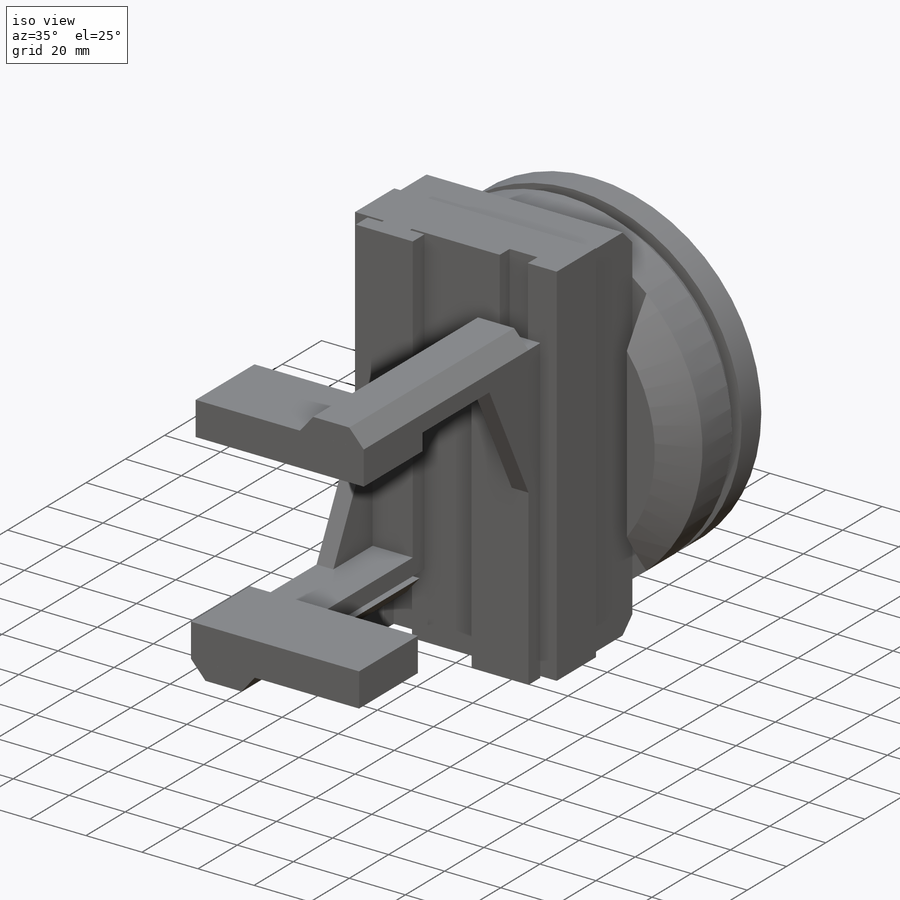
[diagram: iso view]
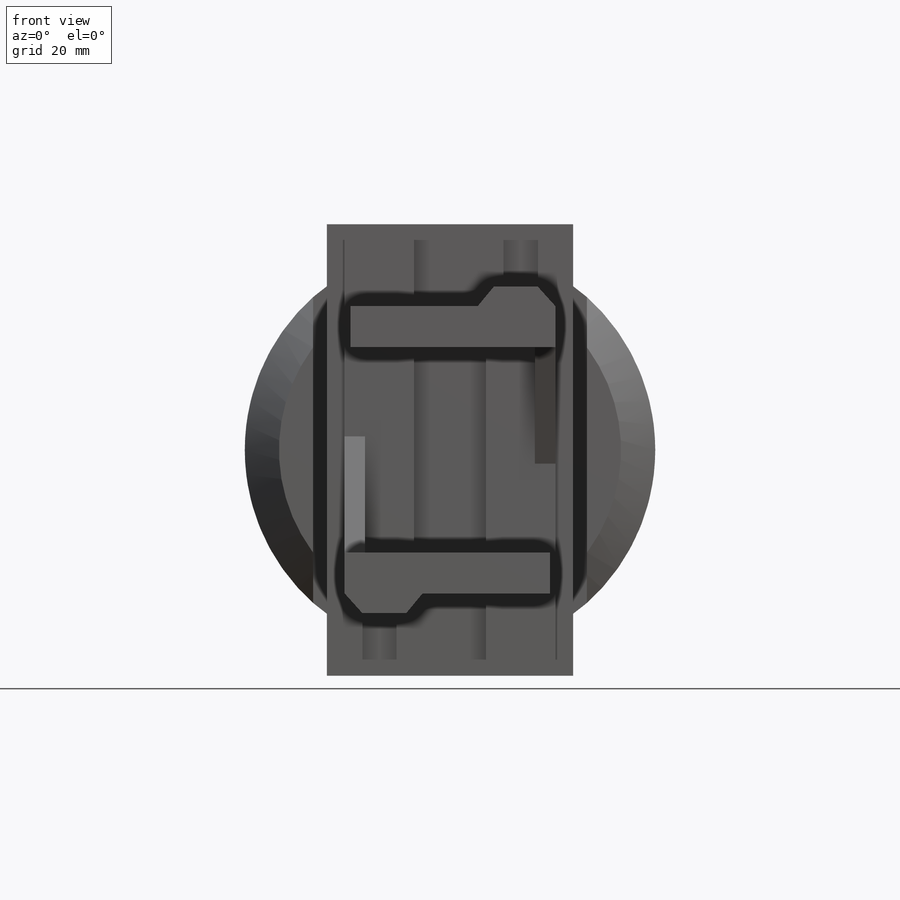
[diagram: front view]
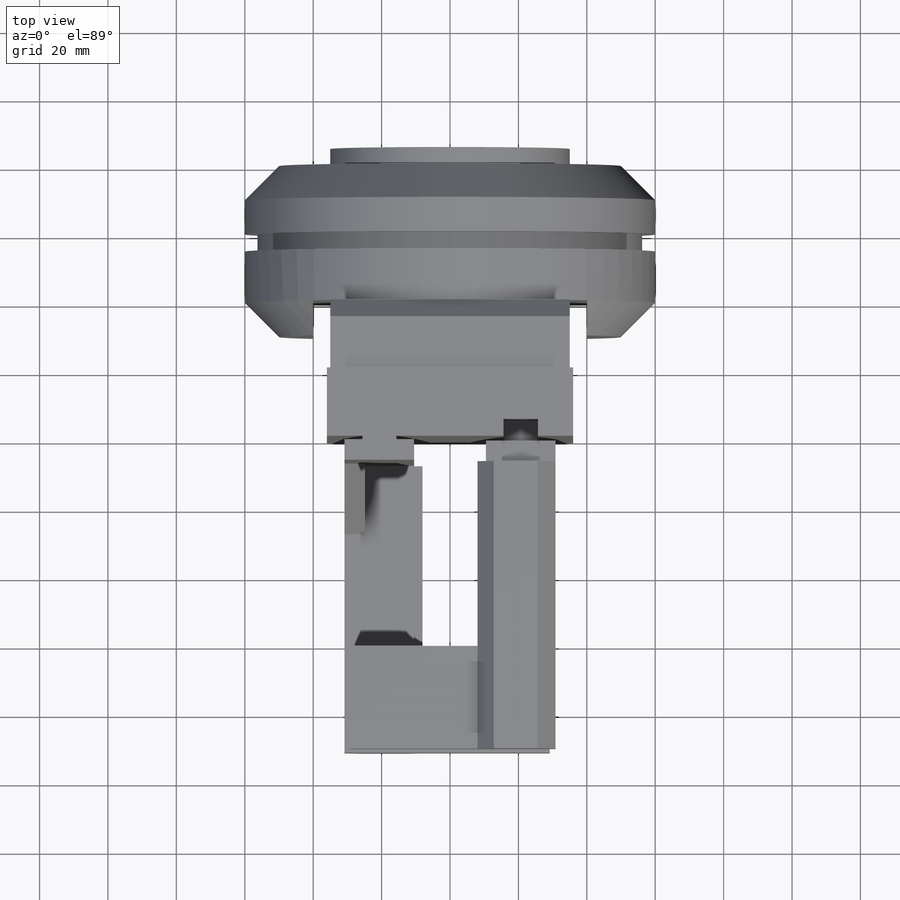
[diagram: top view]
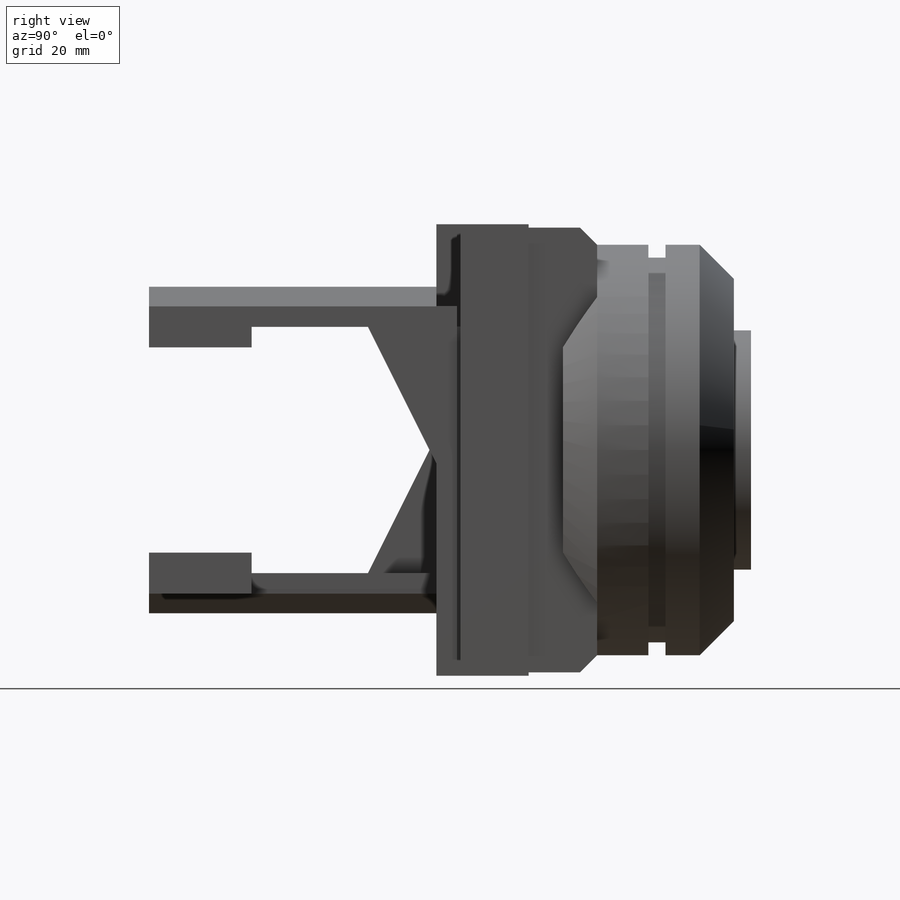
[diagram: right view]
SOLIDWORKS PART (.sldprt)
format: sldprt  version: not decoded by parser v0  size: 509,952 bytes
history: native  units: mm
features: sketch x14, extrude x10, cut_extrude x4, chamfer x4, material x1, pattern_circular x1 (+13 scaffold rows collapsed)
feature tree (47):
  scaffold x13  (default folders/planes/origin — collapsed)
  material  "Material <not specified>"
  sketch  "Sketch1"  dims[D1=120.0mm]
  extrude  "Boss-Extrude1"  Depth=50mm
  sketch  "Sketch2"  dims[D1=80.0mm]
  cut_extrude  "Cut-Extrude1"  Depth=10mm
  sketch  "Sketch3"  dims[D1=70.0mm D2=130.0mm]
  extrude  "Boss-Extrude2"  Depth=20mm
  sketch  "Sketch4"  dims[D1=1.0mm]
  extrude  "Boss-Extrude3"  Depth=20mm
  sketch  "Sketch5"  dims[D1=10.0mm]
  cut_extrude  "Cut-Extrude2"  [1 undecoded]
  sketch  "Sketch6"  dims[D1=30.0mm]
  extrude  "Boss-Extrude4"  Depth=6mm
  sketch  "Sketch7"
  extrude  "Boss-Extrude5"  Depth=6mm
  sketch  "Sketch9"  dims[D1=60.0mm D2=60.0mm D3=90.0mm]
  extrude  "Boss-Extrude6"  Depth=6mm
  sketch  "Sketch10"
  extrude  "Boss-Extrude7"  Depth=6mm
  sketch  "Sketch11"  dims[D1=20.0mm D2=40.0mm]
  extrude  "Boss-Extrude8"  Depth=6mm
  sketch  "Sketch12"
  extrude  "Boss-Extrude9"  Depth=84mm
  pattern_circular  "CirPattern1"  Count=2 Angle=360deg
  sketch  "Sketch13"
  cut_extrude  "Cut-Extrude3"  Depth=5mm
  chamfer  "Chamfer1"  Distance=10mm Angle=45deg
  sketch  "Sketch14"  dims[D1=60.0mm]
  cut_extrude  "Cut-Extrude4"  Depth=5mm
  sketch  "Sketch15"  dims[D1=5.0mm]
  extrude  "Boss-Extrude10"  Depth=5mm
  chamfer  "Chamfer2"  Distance=10mm Angle=45deg
  chamfer  "Chamfer3"  Distance=10mm Angle=45deg
  chamfer  "Chamfer4"  Distance=5mm Angle=45deg
decode coverage: 28 of 33 modeling features carry decoded parameters
note: 1 parameter value undecoded
note: suppression state not decoded; provenance and decode notes live in map.json
